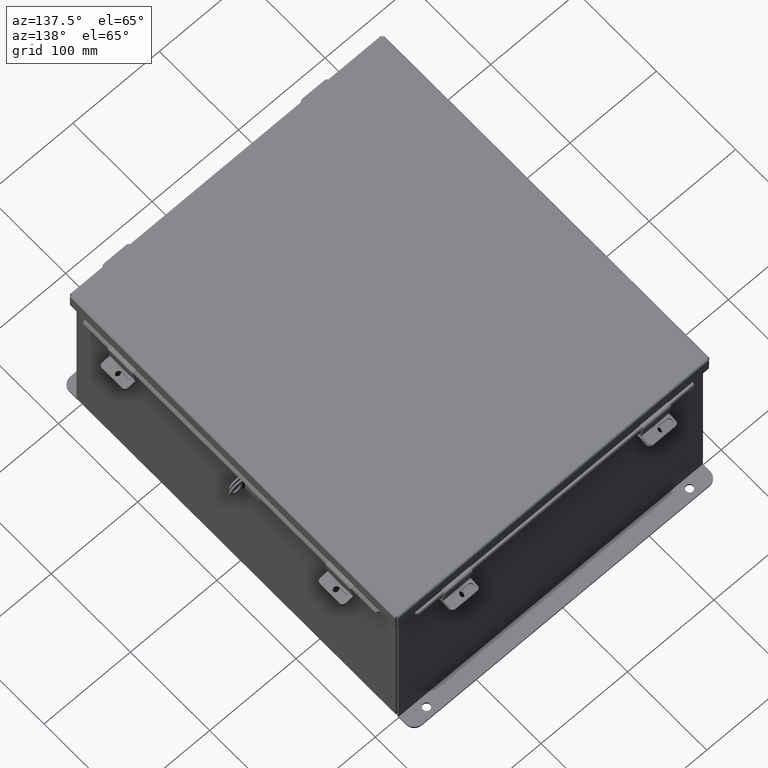
[diagram: clean part render]
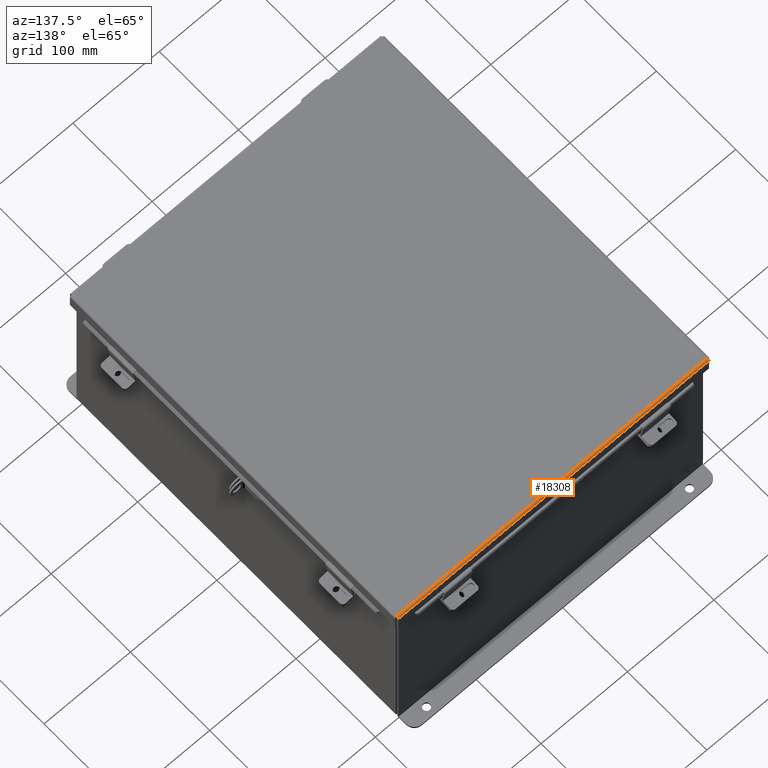
[diagram: same view with one face highlighted and labeled with its STEP entity id]
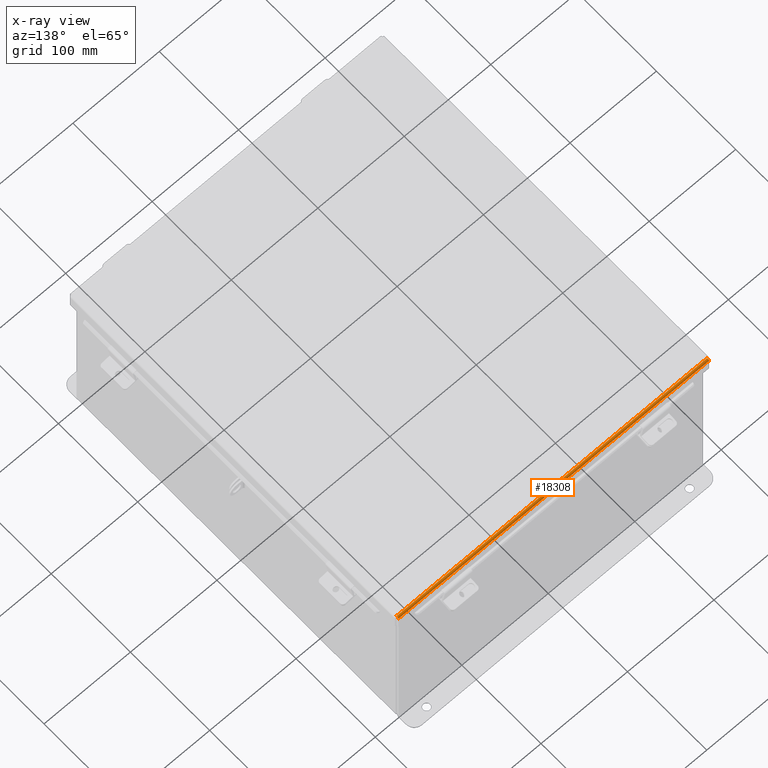
[diagram: x-ray of the same camera — body ghosted, the highlighted face saturated]
A machine part, auxiliary view. The second image highlights one B-rep face of the part: STEP entity #18308.
The next image is the same camera in x-ray: the body ghosted, the highlighted face saturated — about 0% of this face is hidden behind the body in this view.
In plain terms, the highlighted cylindrical surface (edge-blend (fillet) strip) has radius 2.2276 mm, axis along (1, -0, 0).
Its self-contained STEP definition (entity closure, byte-faithful):
#69 = CARTESIAN_POINT ( 'NONE',  ( -7.069538155364703900, 8.091505289458309500, -0.07241740374381157300 ) ) ;
#334 = CARTESIAN_POINT ( 'NONE',  ( 7.070526310729413800, 8.112717384578527200, -0.06363106625866869800 ) ) ;
#1481 = LINE ( 'NONE', #13060, #13422 ) ;
#1490 = VERTEX_POINT ( 'NONE', #4242 ) ;
#1631 = CARTESIAN_POINT ( 'NONE',  ( -7.068550000000025000, 8.068550000000000100, -0.07470000000000015500 ) ) ;
#1927 = CARTESIAN_POINT ( 'NONE',  ( 7.072008543776448200, 8.138680782078321100, -0.04089574734180034100 ) ) ;
#2154 = DIRECTION ( 'NONE',  ( 1.000000000000000000, 3.215975411700707400E-030, -0.0000000000000000000 ) ) ;
#2870 = VECTOR ( 'NONE', #5866, 39.37007874015748100 ) ;
#3356 = LINE ( 'NONE', #4286, #2870 ) ;
#3509 = CARTESIAN_POINT ( 'NONE',  ( 7.073490776823477200, 8.153967403743813200, -0.009955289458309117200 ) ) ;
#4242 = CARTESIAN_POINT ( 'NONE',  ( -7.074478932188148900, 8.156250000000000000, 0.01300000000000010700 ) ) ;
#4282 = B_SPLINE_CURVE_WITH_KNOTS ( 'NONE', 3,
 ( #14309, #8132, #9689, #334, #11289, #1927, #12833, #3509, #14385, #5077 ),
 .UNSPECIFIED., .F., .F.,
 ( 4, 2, 2, 2, 4 ),
 ( 0.0000000000000000000, 0.2500000000000000000, 0.5000000000000000000, 0.7500000000000000000, 1.000000000000000000 ),
 .UNSPECIFIED. ) ;
#4286 = CARTESIAN_POINT ( 'NONE',  ( 7.156250000000018700, 8.156250000000000000, 0.01300000000000010700 ) ) ;
#4739 = CARTESIAN_POINT ( 'NONE',  ( -7.073984854505805100, 8.156250000000000000, 0.001520096845007062900 ) ) ;
#5077 = CARTESIAN_POINT ( 'NONE',  ( 7.074478932188153400, 8.156250000000000000, 0.01300000000000010700 ) ) ;
#5866 = DIRECTION ( 'NONE',  ( 1.000000000000000000, 3.191323508412550700E-030, -0.0000000000000000000 ) ) ;
#6288 = CARTESIAN_POINT ( 'NONE',  ( -7.073490776823462100, 8.153967403743811500, -0.009955289458309115500 ) ) ;
#7032 = B_SPLINE_CURVE_WITH_KNOTS ( 'NONE', 3,
 ( #10935, #4739, #6288, #17140, #7859, #18712, #9405, #69, #11013, #1631 ),
 .UNSPECIFIED., .F., .F.,
 ( 4, 2, 2, 2, 4 ),
 ( 0.0000000000000000000, 0.2500000000000000000, 0.5000000000000000000, 0.7500000000000000000, 1.000000000000000000 ),
 .UNSPECIFIED. ) ;
#7772 = CYLINDRICAL_SURFACE ( 'NONE', #14257, 0.08770000000000026400 ) ;
#7859 = CARTESIAN_POINT ( 'NONE',  ( -7.072008543776428600, 8.138680782078321100, -0.04089574734180033400 ) ) ;
#8132 = CARTESIAN_POINT ( 'NONE',  ( 7.069044077682380400, 8.080029903154992300, -0.07470000000000029400 ) ) ;
#8155 = ORIENTED_EDGE ( 'NONE', *, *, #15738, .F. ) ;
#8324 = DIRECTION ( 'NONE',  ( -1.000000000000000000, -3.215975411700707400E-030, 0.0000000000000000000 ) ) ;
#8407 = ORIENTED_EDGE ( 'NONE', *, *, #11560, .F. ) ;
#9405 = CARTESIAN_POINT ( 'NONE',  ( -7.070526310729394300, 8.112717384578529000, -0.06363106625866871100 ) ) ;
#9445 = VERTEX_POINT ( 'NONE', #12020 ) ;
#9479 = CARTESIAN_POINT ( 'NONE',  ( -7.068550000000025000, 8.068550000000000100, -0.07470000000000015500 ) ) ;
#9668 = EDGE_CURVE ( 'NONE', #1490, #12315, #7032, .T. ) ;
#9689 = CARTESIAN_POINT ( 'NONE',  ( 7.069538155364727000, 8.091505289458311300, -0.07241740374381158700 ) ) ;
#10017 = EDGE_LOOP ( 'NONE', ( #8155, #18787, #14209, #8407 ) ) ;
#10577 = EDGE_CURVE ( 'NONE', #1490, #19712, #3356, .T. ) ;
#10935 = CARTESIAN_POINT ( 'NONE',  ( -7.074478932188148900, 8.156250000000000000, 0.01300000000000010700 ) ) ;
#11013 = CARTESIAN_POINT ( 'NONE',  ( -7.069044077682361800, 8.080029903154994000, -0.07470000000000032200 ) ) ;
#11289 = CARTESIAN_POINT ( 'NONE',  ( 7.071020388411756000, 8.122445747341801700, -0.05713078207832070900 ) ) ;
#11400 = CARTESIAN_POINT ( 'NONE',  ( -7.074478932188148900, 8.068550000000000100, 0.01300000000000010700 ) ) ;
#11560 = EDGE_CURVE ( 'NONE', #9445, #19712, #4282, .T. ) ;
#12020 = CARTESIAN_POINT ( 'NONE',  ( 7.068550000000009900, 8.068550000000000100, -0.07470000000000015500 ) ) ;
#12315 = VERTEX_POINT ( 'NONE', #9479 ) ;
#12833 = CARTESIAN_POINT ( 'NONE',  ( 7.072502621458788500, 8.145181066258668800, -0.03116738457852815500 ) ) ;
#12965 = DIRECTION ( 'NONE',  ( 0.0000000000000000000, 1.000000000000000000, -3.577373637655407700E-015 ) ) ;
#13060 = CARTESIAN_POINT ( 'NONE',  ( -7.074478932188157800, 8.068550000000000100, -0.07470000000000015500 ) ) ;
#13422 = VECTOR ( 'NONE', #2154, 39.37007874015748100 ) ;
#14209 = ORIENTED_EDGE ( 'NONE', *, *, #10577, .T. ) ;
#14257 = AXIS2_PLACEMENT_3D ( 'NONE', #11400, #8324, #12965 ) ;
#14309 = CARTESIAN_POINT ( 'NONE',  ( 7.068550000000009900, 8.068550000000000100, -0.07470000000000015500 ) ) ;
#14385 = CARTESIAN_POINT ( 'NONE',  ( 7.073984854505825500, 8.156250000000001800, 0.001520096845007063500 ) ) ;
#15738 = EDGE_CURVE ( 'NONE', #12315, #9445, #1481, .T. ) ;
#16069 = CARTESIAN_POINT ( 'NONE',  ( 7.074478932188153400, 8.156250000000000000, 0.01300000000000010700 ) ) ;
#17140 = CARTESIAN_POINT ( 'NONE',  ( -7.072502621458771600, 8.145181066258665200, -0.03116738457852814100 ) ) ;
#18308 = ADVANCED_FACE ( 'NONE', ( #20131 ), #7772, .T. ) ;
#18712 = CARTESIAN_POINT ( 'NONE',  ( -7.071020388411740000, 8.122445747341801700, -0.05713078207832069500 ) ) ;
#18787 = ORIENTED_EDGE ( 'NONE', *, *, #9668, .F. ) ;
#19712 = VERTEX_POINT ( 'NONE', #16069 ) ;
#20131 = FACE_OUTER_BOUND ( 'NONE', #10017, .T. ) ;